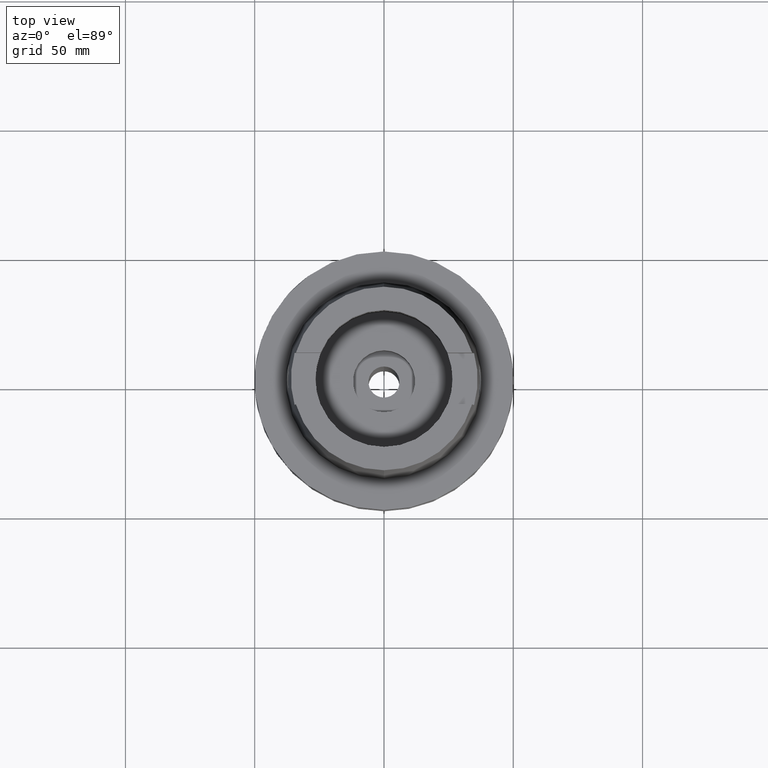
[diagram: clean part render]
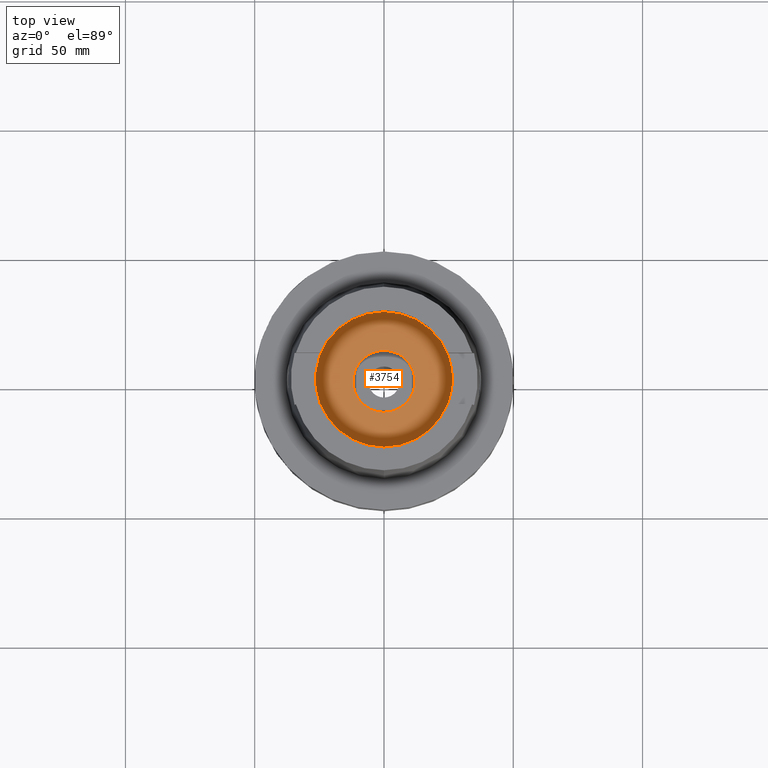
[diagram: same view with one face highlighted and labeled with its STEP entity id]
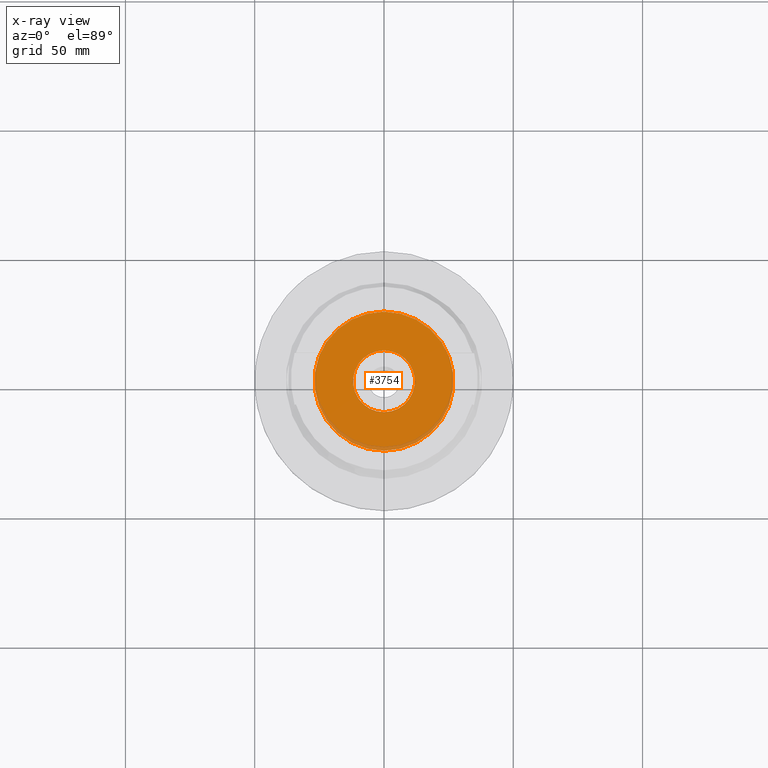
[diagram: x-ray of the same camera — body ghosted, the highlighted face saturated]
A machine part, top view. The second image highlights one B-rep face of the part: STEP entity #3754.
The next image is the same camera in x-ray: the body ghosted, the highlighted face saturated — about 5% of this face is hidden behind the body in this view.
In plain terms, the highlighted planar face has unit normal (0, 0, 1).
Its self-contained STEP definition (entity closure, byte-faithful):
#1774=CARTESIAN_POINT('',(0.E0,0.E0,-1.245E1));
#1775=DIRECTION('',(0.E0,0.E0,-1.E0));
#1776=DIRECTION('',(0.E0,-1.E0,0.E0));
#1777=AXIS2_PLACEMENT_3D('',#1774,#1775,#1776);
#1782=CARTESIAN_POINT('',(0.E0,0.E0,-1.245E1));
#1783=DIRECTION('',(0.E0,0.E0,-1.E0));
#1784=DIRECTION('',(0.E0,1.E0,0.E0));
#1785=AXIS2_PLACEMENT_3D('',#1782,#1783,#1784);
#1790=CARTESIAN_POINT('',(0.E0,0.E0,-1.245E1));
#1791=DIRECTION('',(0.E0,0.E0,1.E0));
#1792=DIRECTION('',(0.E0,-1.E0,0.E0));
#1793=AXIS2_PLACEMENT_3D('',#1790,#1791,#1792);
#1798=CARTESIAN_POINT('',(0.E0,0.E0,-1.245E1));
#1799=DIRECTION('',(0.E0,0.E0,1.E0));
#1800=DIRECTION('',(0.E0,1.E0,0.E0));
#1801=AXIS2_PLACEMENT_3D('',#1798,#1799,#1800);
#2298=CARTESIAN_POINT('',(0.E0,1.2E1,-1.245E1));
#2299=VERTEX_POINT('',#2298);
#2300=CARTESIAN_POINT('',(0.E0,-1.2E1,-1.245E1));
#2301=VERTEX_POINT('',#2300);
#2302=CARTESIAN_POINT('',(0.E0,-2.69E1,-1.245E1));
#2303=CARTESIAN_POINT('',(0.E0,2.69E1,-1.245E1));
#2304=VERTEX_POINT('',#2302);
#2305=VERTEX_POINT('',#2303);
#3739=CARTESIAN_POINT('',(0.E0,0.E0,-1.245E1));
#3740=DIRECTION('',(0.E0,0.E0,1.E0));
#3741=DIRECTION('',(0.E0,1.E0,0.E0));
#3742=AXIS2_PLACEMENT_3D('',#3739,#3740,#3741);
#3743=PLANE('',#3742);
#3745=ORIENTED_EDGE('',*,*,#3744,.T.);
#3747=ORIENTED_EDGE('',*,*,#3746,.T.);
#3748=EDGE_LOOP('',(#3745,#3747));
#3749=FACE_OUTER_BOUND('',#3748,.F.);
#3750=ORIENTED_EDGE('',*,*,#3732,.T.);
#3751=ORIENTED_EDGE('',*,*,#3721,.T.);
#3752=EDGE_LOOP('',(#3750,#3751));
#3753=FACE_BOUND('',#3752,.F.);
#1778=CIRCLE('',#1777,2.69E1);
#1786=CIRCLE('',#1785,2.69E1);
#1794=CIRCLE('',#1793,1.2E1);
#1802=CIRCLE('',#1801,1.2E1);
#3721=EDGE_CURVE('',#2299,#2301,#1802,.T.);
#3732=EDGE_CURVE('',#2301,#2299,#1794,.T.);
#3744=EDGE_CURVE('',#2304,#2305,#1778,.T.);
#3746=EDGE_CURVE('',#2305,#2304,#1786,.T.);
#3754=ADVANCED_FACE('',(#3749,#3753),#3743,.T.);